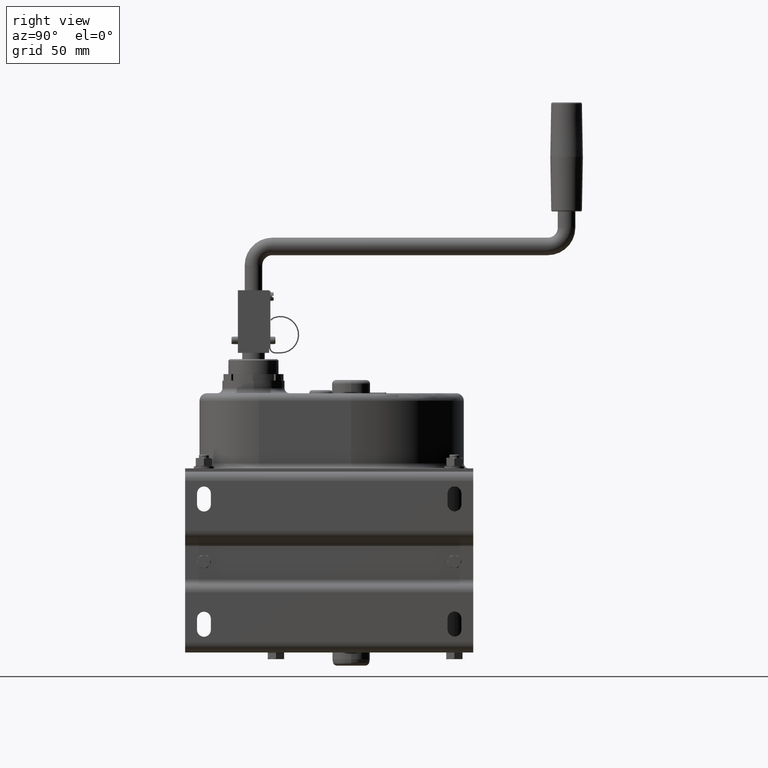
[diagram: clean part render]
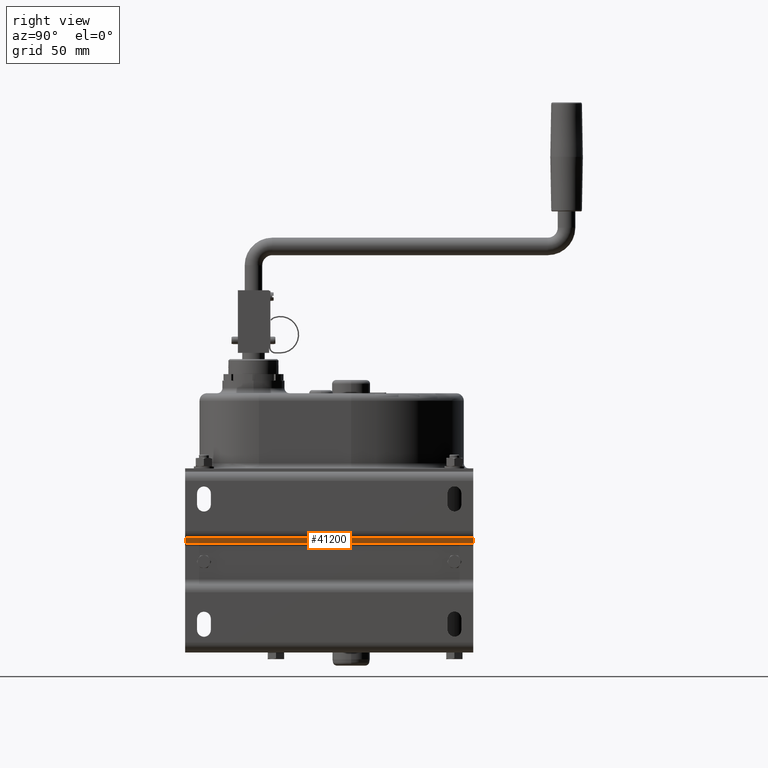
[diagram: same view with one face highlighted and labeled with its STEP entity id]
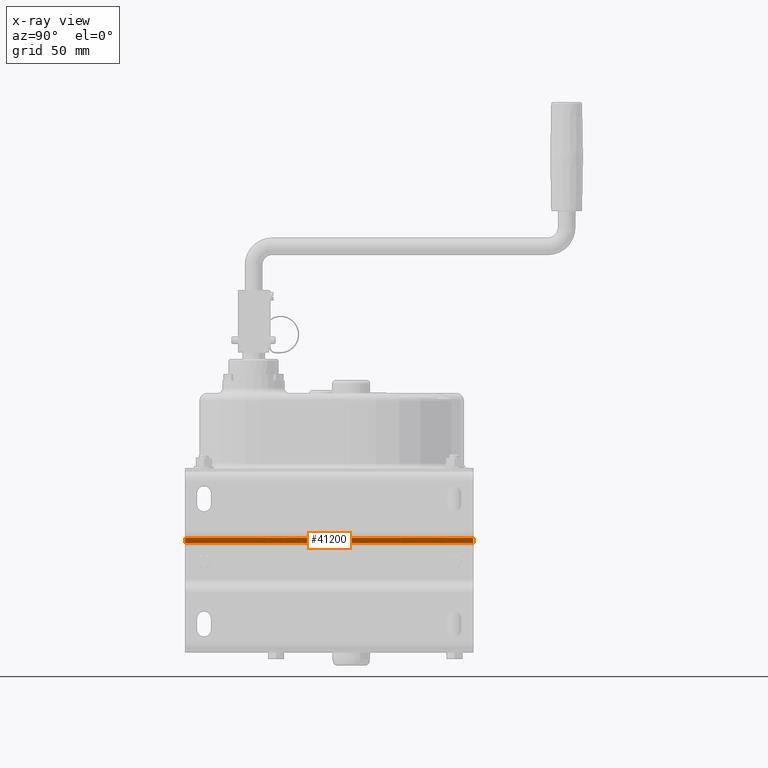
[diagram: x-ray of the same camera — body ghosted, the highlighted face saturated]
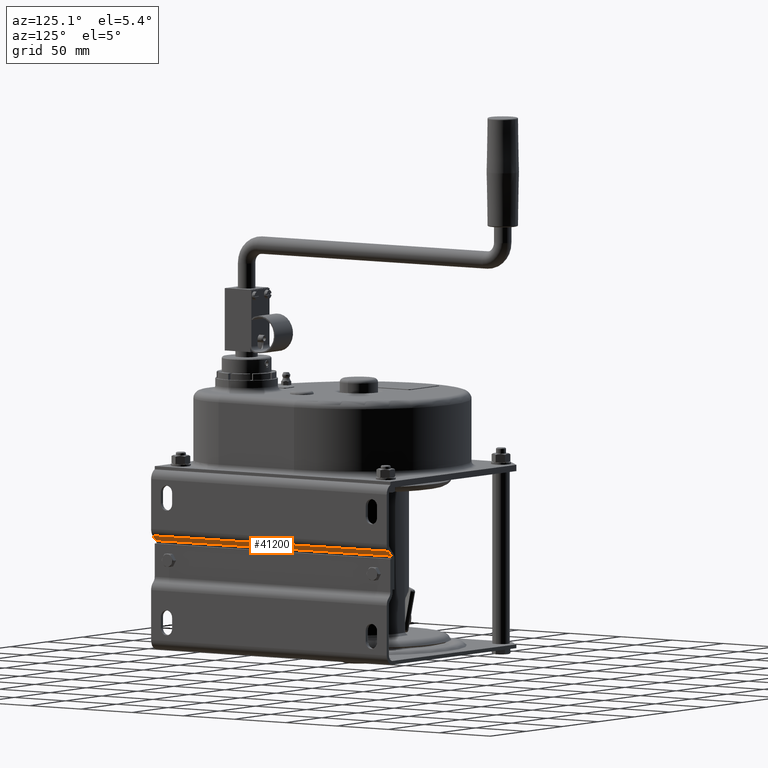
[diagram: same view with one face highlighted and labeled with its STEP entity id]
A machine part, right view. The second image highlights one B-rep face of the part: STEP entity #41200.
The next image is the same camera in x-ray: the body ghosted, the highlighted face saturated — about 0% of this face is hidden behind the body in this view.
A second angle (auxiliary view) of the same face is appended — the face is thin or edge-on in the first view.
In plain terms, the highlighted planar face has unit normal (-0.7071, 0, 0.7071).
Its self-contained STEP definition (entity closure, byte-faithful):
#60=CARTESIAN_POINT('',(-97.6568542494924,91.4142135623731,
-107.281534200716));
#70=DIRECTION('',(0.,0.,1.));
#80=VECTOR('',#70,1.);
#90=LINE('',#60,#80);
#100=CARTESIAN_POINT('',(-97.6568542494924,91.4142135623731,-132.5));
#110=VERTEX_POINT('',#100);
#120=CARTESIAN_POINT('',(-97.6568542494924,91.4142135623731,97.5));
#130=VERTEX_POINT('',#120);
#140=EDGE_CURVE('',#110,#130,#90,.T.);
#930=CARTESIAN_POINT('',(-93.4644660940673,87.2218254069479,97.5));
#940=VERTEX_POINT('',#930);
#1120=CARTESIAN_POINT('',(-93.4644660940673,87.2218254069479,-132.5));
#1130=VERTEX_POINT('',#1120);
#1160=CARTESIAN_POINT('',(-93.4644660940673,87.2218254069479,0.));
#1170=DIRECTION('',(0.,0.,-1.));
#1180=VECTOR('',#1170,1.);
#1190=LINE('',#1160,#1180);
#1200=EDGE_CURVE('',#940,#1130,#1190,.T.);
#40990=CARTESIAN_POINT('',(-98.7569427760575,92.5143020889382,-132.5));
#41000=DIRECTION('',(0.707106781186548,0.707106781186547,-0.));
#41010=DIRECTION('',(0.,0.,1.));
#41020=AXIS2_PLACEMENT_3D('',#40990,#41000,#41010);
#41030=PLANE('',#41020);
#41040=CARTESIAN_POINT('',(-151.242640687119,145.,-132.5));
#41050=DIRECTION('',(-0.707106781186547,0.707106781186548,
1.11022302462516E-16));
#41060=VECTOR('',#41050,1.);
#41070=LINE('',#41040,#41060);
#41080=EDGE_CURVE('',#1130,#110,#41070,.T.);
#41090=ORIENTED_EDGE('',*,*,#41080,.F.);
#41100=ORIENTED_EDGE('',*,*,#140,.F.);
#41110=CARTESIAN_POINT('',(-151.242640687119,145.,97.5));
#41120=DIRECTION('',(0.707106781186547,-0.707106781186548,
-1.11022302462516E-16));
#41130=VECTOR('',#41120,1.);
#41140=LINE('',#41110,#41130);
#41150=EDGE_CURVE('',#130,#940,#41140,.T.);
#41160=ORIENTED_EDGE('',*,*,#41150,.F.);
#41170=ORIENTED_EDGE('',*,*,#1200,.F.);
#41180=EDGE_LOOP('',(#41170,#41160,#41100,#41090));
#41190=FACE_OUTER_BOUND('',#41180,.T.);
#41200=ADVANCED_FACE('',(#41190),#41030,.F.);